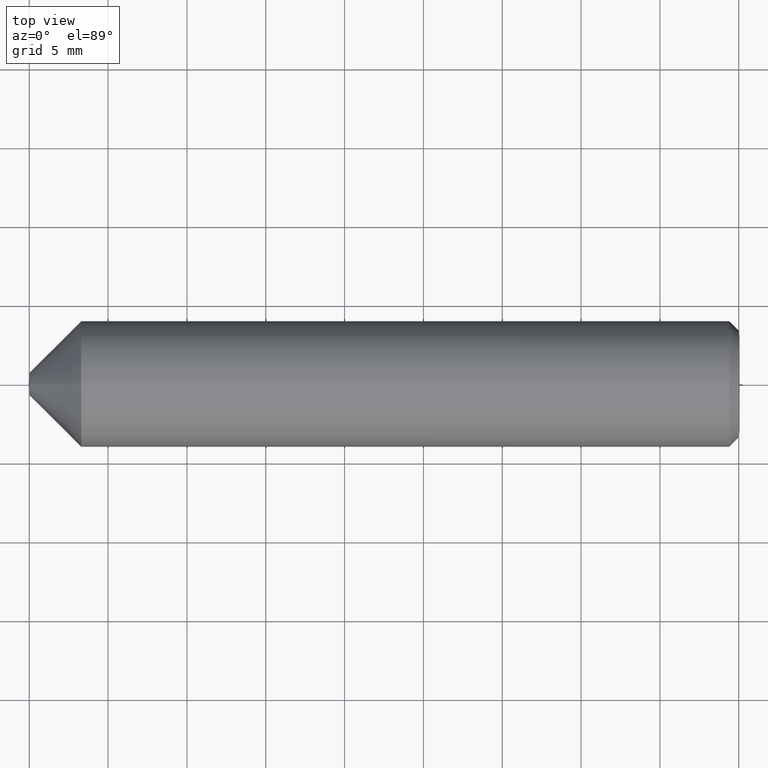
[diagram: clean part render]
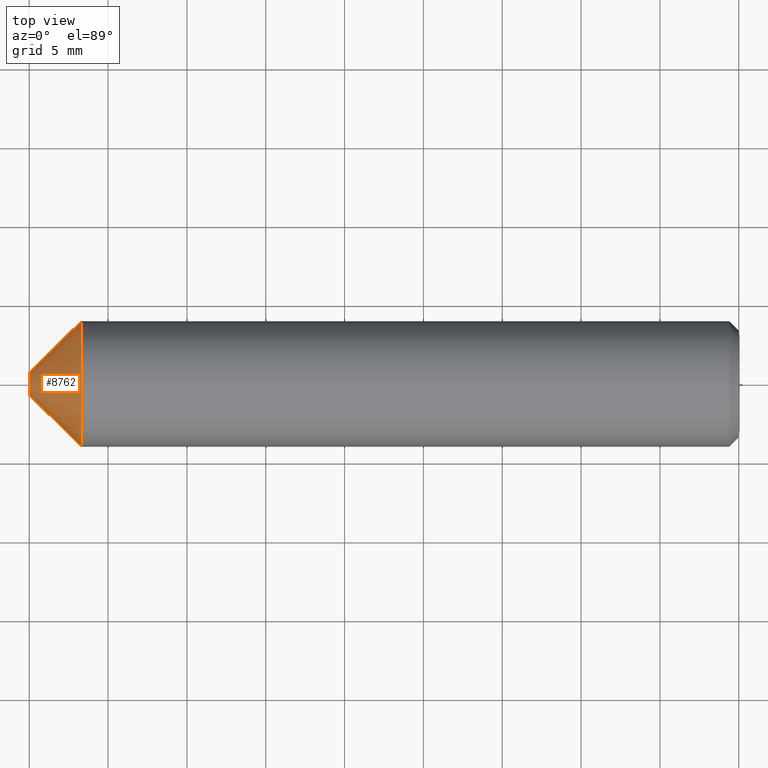
[diagram: same view with one face highlighted and labeled with its STEP entity id]
A machine part, top view. The second image highlights one B-rep face of the part: STEP entity #8762.
In plain terms, the highlighted conical surface has half-angle 45 deg.
Its self-contained STEP definition (entity closure, byte-faithful):
#29 = EDGE_LOOP ( 'NONE', ( #9993 ) ) ;
#260 = CARTESIAN_POINT ( 'NONE',  ( 2.816687638038912500E-016, 0.0000000000000000000, 0.6999999999999999600 ) ) ;
#599 = EDGE_CURVE ( 'NONE', #11907, #11907, #2755, .T. ) ;
#956 = AXIS2_PLACEMENT_3D ( 'NONE', #11559, #1501, #8087 ) ;
#1110 = VERTEX_POINT ( 'NONE', #260 ) ;
#1501 = DIRECTION ( 'NONE',  ( 1.000000000000000000, 0.0000000000000000000, 0.0000000000000000000 ) ) ;
#2241 = CARTESIAN_POINT ( 'NONE',  ( 3.299999999999963000, 0.0000000000000000000, 4.000000000000000000 ) ) ;
#2755 = CIRCLE ( 'NONE', #6389, 4.000000000000000000 ) ;
#2881 = CIRCLE ( 'NONE', #8006, 0.6999999999999999600 ) ;
#3183 = EDGE_CURVE ( 'NONE', #1110, #1110, #2881, .T. ) ;
#3673 = FACE_BOUND ( 'NONE', #29, .T. ) ;
#4187 = CARTESIAN_POINT ( 'NONE',  ( 3.299999999999963000, 0.0000000000000000000, 0.0000000000000000000 ) ) ;
#4638 = DIRECTION ( 'NONE',  ( 0.0000000000000000000, 0.0000000000000000000, 1.000000000000000000 ) ) ;
#4835 = CONICAL_SURFACE ( 'NONE', #956, 0.6999999999999999600, 0.7853981633974539400 ) ;
#5024 = EDGE_LOOP ( 'NONE', ( #8282 ) ) ;
#6150 = FACE_OUTER_BOUND ( 'NONE', #5024, .T. ) ;
#6389 = AXIS2_PLACEMENT_3D ( 'NONE', #4187, #10652, #9809 ) ;
#8006 = AXIS2_PLACEMENT_3D ( 'NONE', #11962, #10181, #4638 ) ;
#8087 = DIRECTION ( 'NONE',  ( 0.0000000000000000000, 0.0000000000000000000, -1.000000000000000000 ) ) ;
#8282 = ORIENTED_EDGE ( 'NONE', *, *, #599, .T. ) ;
#8762 = ADVANCED_FACE ( 'NONE', ( #6150, #3673 ), #4835, .T. ) ;
#9809 = DIRECTION ( 'NONE',  ( 0.0000000000000000000, 0.0000000000000000000, 1.000000000000000000 ) ) ;
#9993 = ORIENTED_EDGE ( 'NONE', *, *, #3183, .F. ) ;
#10181 = DIRECTION ( 'NONE',  ( -1.000000000000000000, -0.0000000000000000000, -0.0000000000000000000 ) ) ;
#10652 = DIRECTION ( 'NONE',  ( -1.000000000000000000, -0.0000000000000000000, -0.0000000000000000000 ) ) ;
#11559 = CARTESIAN_POINT ( 'NONE',  ( 2.816687638038912500E-016, 0.0000000000000000000, 0.0000000000000000000 ) ) ;
#11907 = VERTEX_POINT ( 'NONE', #2241 ) ;
#11962 = CARTESIAN_POINT ( 'NONE',  ( 2.816687638038912500E-016, 0.0000000000000000000, 0.0000000000000000000 ) ) ;